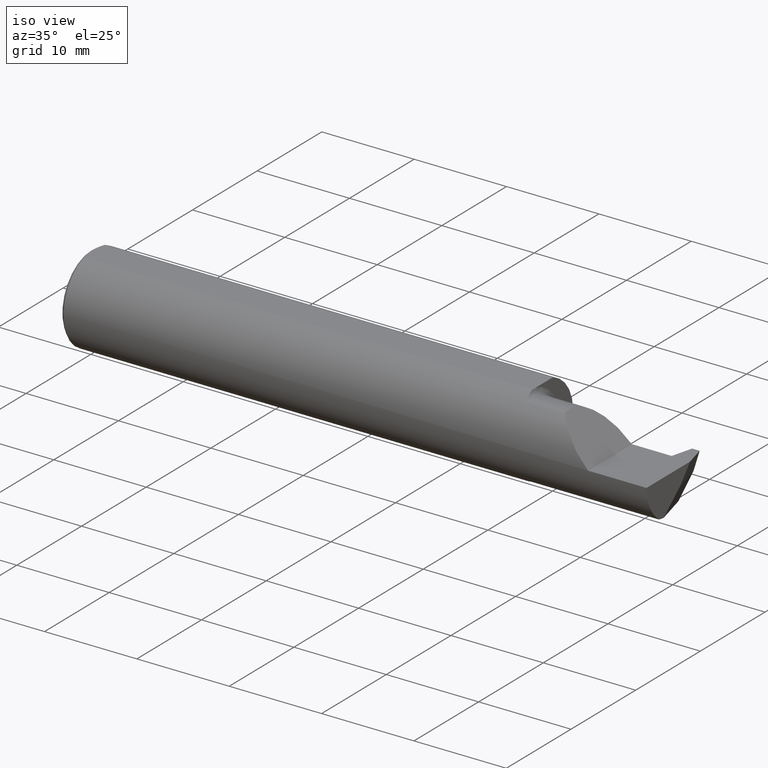
[diagram: clean part render]
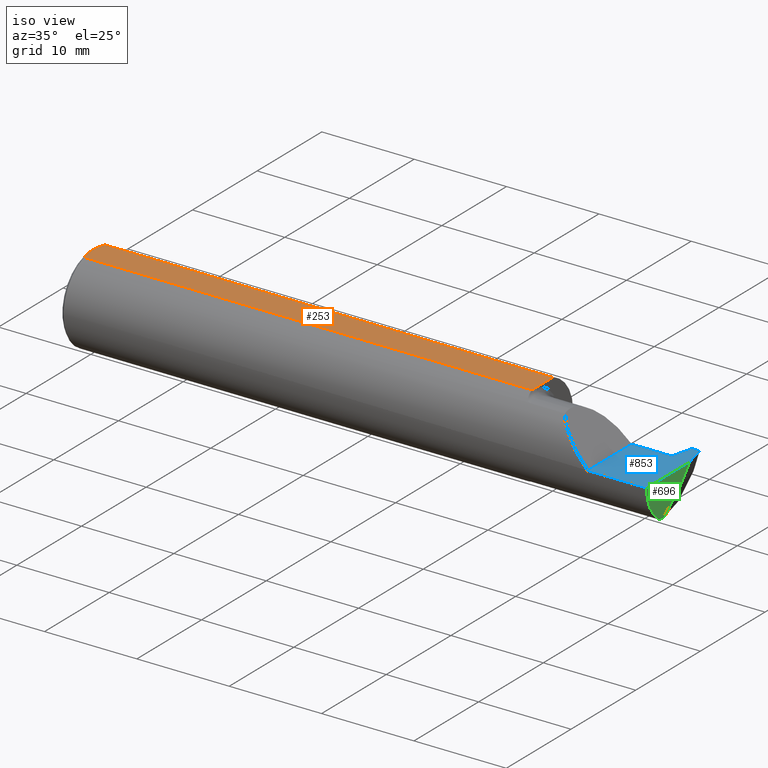
[diagram: same view with three faces highlighted in distinct colors, each labeled with its STEP entity id]
A machine part, iso view with three faces highlighted in distinct colors.
Their STEP definitions:

[orange] entity #253 — the highlighted planar face has unit normal (-0, 0, -1).
#16 = CARTESIAN_POINT ( 'NONE',  ( 0.01500000000000016251, -0.06325108694718359348, 0.1763499999999999790 ) ) ;
#33 = LINE ( 'NONE', #473, #823 ) ;
#48 = VECTOR ( 'NONE', #893, 39.37007874015748143 ) ;
#64 = VECTOR ( 'NONE', #815, 39.37007874015748143 ) ;
#87 = CARTESIAN_POINT ( 'NONE',  ( 0.01500000000000079568, 0.06325108694718213631, 0.1763499999999999790 ) ) ;
#88 = DIRECTION ( 'NONE',  ( 0.000000000000000000, -1.000000000000000000, 0.000000000000000000 ) ) ;
#129 = FACE_OUTER_BOUND ( 'NONE', #864, .T. ) ;
#134 = CARTESIAN_POINT ( 'NONE',  ( 1.925210246786177137, -0.06325108694718213631, 0.1763499999999999790 ) ) ;
#136 = B_SPLINE_CURVE_WITH_KNOTS ( 'NONE', 3,
 ( #331, #496, #580, #422 ),
 .UNSPECIFIED., .F., .F.,
 ( 4, 4 ),
 ( 1.084202172485504434E-18, 0.0006087596641710211901 ),
 .UNSPECIFIED. ) ;
#151 = CARTESIAN_POINT ( 'NONE',  ( 0.01500000000000016251, -0.06325108694718359348, 0.1763499999999999790 ) ) ;
#153 = CARTESIAN_POINT ( 'NONE',  ( 0.01500000000000079568, 0.06325108694718213631, 0.1763499999999999790 ) ) ;
#178 = EDGE_CURVE ( 'NONE', #228, #462, #136, .T. ) ;
#211 = CARTESIAN_POINT ( 'NONE',  ( 2.500000000000000000, -0.06325108694718213631, 0.1763499999999999790 ) ) ;
#221 = B_SPLINE_CURVE_WITH_KNOTS ( 'NONE', 3,
 ( #87, #604, #385, #688 ),
 .UNSPECIFIED., .F., .F.,
 ( 4, 4 ),
 ( 0.003872958501701110473, 0.005496776235116787243 ),
 .UNSPECIFIED. ) ;
#228 = VERTEX_POINT ( 'NONE', #134 ) ;
#253 = ADVANCED_FACE ( 'NONE', ( #129 ), #375, .F. ) ;
#255 = ORIENTED_EDGE ( 'NONE', *, *, #533, .F. ) ;
#312 = EDGE_CURVE ( 'NONE', #228, #421, #967, .T. ) ;
#321 = ORIENTED_EDGE ( 'NONE', *, *, #976, .T. ) ;
#331 = CARTESIAN_POINT ( 'NONE',  ( 1.925210246786177137, -0.06325108694718213631, 0.1763499999999999790 ) ) ;
#375 = PLANE ( 'NONE',  #968 ) ;
#385 = CARTESIAN_POINT ( 'NONE',  ( 0.004000000000000698309, 0.02174349820064850128, 0.1763499999999999790 ) ) ;
#391 = VERTEX_POINT ( 'NONE', #836 ) ;
#421 = VERTEX_POINT ( 'NONE', #151 ) ;
#422 = CARTESIAN_POINT ( 'NONE',  ( 1.925000000000000266, -0.03928509323455842139, 0.1763499999999999790 ) ) ;
#441 = EDGE_CURVE ( 'NONE', #817, #851, #676, .T. ) ;
#462 = VERTEX_POINT ( 'NONE', #756 ) ;
#473 = CARTESIAN_POINT ( 'NONE',  ( 1.925000000000000266, 0.1000000000000000056, 0.1763499999999999790 ) ) ;
#496 = CARTESIAN_POINT ( 'NONE',  ( 1.925138881465989771, -0.05526243373525235869, 0.1763499999999999790 ) ) ;
#533 = EDGE_CURVE ( 'NONE', #851, #462, #33, .T. ) ;
#568 = ORIENTED_EDGE ( 'NONE', *, *, #312, .F. ) ;
#580 = CARTESIAN_POINT ( 'NONE',  ( 1.925000000000000266, -0.04727406520530673395, 0.1763499999999999790 ) ) ;
#581 = EDGE_CURVE ( 'NONE', #391, #421, #722, .T. ) ;
#588 = DIRECTION ( 'NONE',  ( -0.000000000000000000, 0.000000000000000000, -1.000000000000000000 ) ) ;
#600 = CARTESIAN_POINT ( 'NONE',  ( 2.500000000000000000, 0.06325108694718213631, 0.1763499999999999790 ) ) ;
#604 = CARTESIAN_POINT ( 'NONE',  ( 0.008079618022130599653, 0.04275288484297749825, 0.1763499999999999790 ) ) ;
#676 = LINE ( 'NONE', #600, #48 ) ;
#688 = CARTESIAN_POINT ( 'NONE',  ( 0.004000000000000698309, 2.159664630174422375E-17, 0.1763499999999999790 ) ) ;
#694 = CARTESIAN_POINT ( 'NONE',  ( 0.004000000000000693105, -0.02175731046388915818, 0.1763499999999999790 ) ) ;
#697 = ORIENTED_EDGE ( 'NONE', *, *, #441, .F. ) ;
#706 = CARTESIAN_POINT ( 'NONE',  ( 0.008096539338608545536, -0.04280300585742017466, 0.1763499999999999790 ) ) ;
#722 = B_SPLINE_CURVE_WITH_KNOTS ( 'NONE', 3,
 ( #923, #694, #706, #16 ),
 .UNSPECIFIED., .F., .F.,
 ( 4, 4 ),
 ( 0.005496776235116787243, 0.007121625476792169465 ),
 .UNSPECIFIED. ) ;
#733 = ORIENTED_EDGE ( 'NONE', *, *, #581, .T. ) ;
#739 = DIRECTION ( 'NONE',  ( -1.000000000000000000, 0.000000000000000000, 0.000000000000000000 ) ) ;
#756 = CARTESIAN_POINT ( 'NONE',  ( 1.925000000000000266, -0.03928509323455842139, 0.1763499999999999790 ) ) ;
#815 = DIRECTION ( 'NONE',  ( -1.000000000000000000, -0.000000000000000000, -0.000000000000000000 ) ) ;
#817 = VERTEX_POINT ( 'NONE', #153 ) ;
#823 = VECTOR ( 'NONE', #88, 39.37007874015748143 ) ;
#836 = CARTESIAN_POINT ( 'NONE',  ( 0.004000000000000698309, 2.159664630174422375E-17, 0.1763499999999999790 ) ) ;
#851 = VERTEX_POINT ( 'NONE', #916 ) ;
#864 = EDGE_LOOP ( 'NONE', ( #255, #697, #321, #733, #568, #878 ) ) ;
#878 = ORIENTED_EDGE ( 'NONE', *, *, #178, .T. ) ;
#893 = DIRECTION ( 'NONE',  ( 1.000000000000000000, 0.000000000000000000, 0.000000000000000000 ) ) ;
#916 = CARTESIAN_POINT ( 'NONE',  ( 1.925000000000000266, 0.06325108694718213631, 0.1763499999999999790 ) ) ;
#923 = CARTESIAN_POINT ( 'NONE',  ( 0.004000000000000698309, 2.159664630174422375E-17, 0.1763499999999999790 ) ) ;
#959 = CARTESIAN_POINT ( 'NONE',  ( 0.000000000000000000, 0.1000000000000000056, 0.1763499999999999790 ) ) ;
#967 = LINE ( 'NONE', #211, #64 ) ;
#968 = AXIS2_PLACEMENT_3D ( 'NONE', #959, #588, #739 ) ;
#976 = EDGE_CURVE ( 'NONE', #817, #391, #221, .T. ) ;

[blue] entity #853 — the highlighted planar face has unit normal (-0, 0, -1).
#17 = DIRECTION ( 'NONE',  ( -0.000000000000000000, 0.000000000000000000, -1.000000000000000000 ) ) ;
#40 = DIRECTION ( 'NONE',  ( -0.000000000000000000, 1.000000000000000000, -0.000000000000000000 ) ) ;
#57 = ORIENTED_EDGE ( 'NONE', *, *, #654, .F. ) ;
#71 = DIRECTION ( 'NONE',  ( -1.000000000000000000, -0.000000000000000000, -0.000000000000000000 ) ) ;
#79 = VECTOR ( 'NONE', #40, 39.37007874015748143 ) ;
#111 = CARTESIAN_POINT ( 'NONE',  ( 2.250000000000000000, 0.2000000000000000111, -4.469813191451678053E-17 ) ) ;
#138 = VECTOR ( 'NONE', #973, 39.37007874015748143 ) ;
#158 = PLANE ( 'NONE',  #394 ) ;
#199 = CARTESIAN_POINT ( 'NONE',  ( 2.500000000000000000, -0.1873500000000000165, -4.469813191451678053E-17 ) ) ;
#217 = LINE ( 'NONE', #227, #843 ) ;
#224 = CARTESIAN_POINT ( 'NONE',  ( 2.500000000000000000, 0.07784888572242860960, 0.000000000000000000 ) ) ;
#226 = VERTEX_POINT ( 'NONE', #734 ) ;
#227 = CARTESIAN_POINT ( 'NONE',  ( 1.925000000000000266, 0.07964999999999992919, -4.469813191451678053E-17 ) ) ;
#244 = VERTEX_POINT ( 'NONE', #199 ) ;
#248 = VERTEX_POINT ( 'NONE', #518 ) ;
#260 = LINE ( 'NONE', #111, #79 ) ;
#267 = DIRECTION ( 'NONE',  ( 0.2503800040544337246, -0.9681476403781097417, 0.000000000000000000 ) ) ;
#284 = LINE ( 'NONE', #750, #855 ) ;
#289 = CARTESIAN_POINT ( 'NONE',  ( 2.420465799823614539, 0.07964999999999992919, 0.000000000000000000 ) ) ;
#296 = EDGE_CURVE ( 'NONE', #924, #650, #601, .T. ) ;
#306 = LINE ( 'NONE', #909, #576 ) ;
#338 = CARTESIAN_POINT ( 'NONE',  ( 2.250000000000000000, -0.1873499999999999888, -4.469813191451678053E-17 ) ) ;
#367 = LINE ( 'NONE', #289, #969 ) ;
#382 = DIRECTION ( 'NONE',  ( 1.000000000000000000, 0.000000000000000000, 0.000000000000000000 ) ) ;
#384 = ORIENTED_EDGE ( 'NONE', *, *, #668, .F. ) ;
#387 = CARTESIAN_POINT ( 'NONE',  ( 2.250000000000000000, 0.2000000000000000111, -4.469813191451678053E-17 ) ) ;
#394 = AXIS2_PLACEMENT_3D ( 'NONE', #387, #17, #913 ) ;
#399 = EDGE_CURVE ( 'NONE', #226, #650, #306, .T. ) ;
#417 = CARTESIAN_POINT ( 'NONE',  ( 2.475314547023544254, 0.1733004499999999115, 0.000000000000000000 ) ) ;
#429 = VERTEX_POINT ( 'NONE', #224 ) ;
#435 = CARTESIAN_POINT ( 'NONE',  ( 2.476000000000000423, 0.1706499999999999406, 0.000000000000000000 ) ) ;
#437 = VECTOR ( 'NONE', #267, 39.37007874015748143 ) ;
#472 = ORIENTED_EDGE ( 'NONE', *, *, #740, .F. ) ;
#487 = CARTESIAN_POINT ( 'NONE',  ( 2.500000000000000000, 0.2000000000000000111, -4.469813191451678053E-17 ) ) ;
#500 = DIRECTION ( 'NONE',  ( -0.000000000000000000, 1.000000000000000000, -0.000000000000000000 ) ) ;
#518 = CARTESIAN_POINT ( 'NONE',  ( 2.250000000000000000, 0.07964999999999992919, -4.469813191451678053E-17 ) ) ;
#522 = VECTOR ( 'NONE', #500, 39.37007874015748143 ) ;
#544 = FACE_OUTER_BOUND ( 'NONE', #972, .T. ) ;
#576 = VECTOR ( 'NONE', #616, 39.37007874015748854 ) ;
#579 = ORIENTED_EDGE ( 'NONE', *, *, #399, .F. ) ;
#584 = CARTESIAN_POINT ( 'NONE',  ( 2.249999999999999556, 0.1706500000000036599, -4.469813191451678053E-17 ) ) ;
#601 = LINE ( 'NONE', #584, #138 ) ;
#607 = EDGE_CURVE ( 'NONE', #653, #248, #260, .T. ) ;
#616 = DIRECTION ( 'NONE',  ( 0.2503800040544299499, 0.9681476403781106299, -0.000000000000000000 ) ) ;
#627 = EDGE_CURVE ( 'NONE', #244, #429, #865, .T. ) ;
#648 = LINE ( 'NONE', #417, #437 ) ;
#650 = VERTEX_POINT ( 'NONE', #950 ) ;
#653 = VERTEX_POINT ( 'NONE', #338 ) ;
#654 = EDGE_CURVE ( 'NONE', #924, #429, #648, .T. ) ;
#657 = ORIENTED_EDGE ( 'NONE', *, *, #296, .T. ) ;
#668 = EDGE_CURVE ( 'NONE', #244, #653, #284, .T. ) ;
#734 = CARTESIAN_POINT ( 'NONE',  ( 2.420465799823614539, 0.07964999999999992919, 0.000000000000000000 ) ) ;
#740 = EDGE_CURVE ( 'NONE', #870, #226, #367, .T. ) ;
#750 = CARTESIAN_POINT ( 'NONE',  ( 2.500000000000000000, -0.1873499999999999888, -4.469813191451678053E-17 ) ) ;
#820 = DIRECTION ( 'NONE',  ( 1.000000000000000000, 1.707404996040182705E-15, -0.000000000000000000 ) ) ;
#841 = ORIENTED_EDGE ( 'NONE', *, *, #607, .F. ) ;
#843 = VECTOR ( 'NONE', #382, 39.37007874015748143 ) ;
#853 = ADVANCED_FACE ( 'NONE', ( #544 ), #158, .F. ) ;
#855 = VECTOR ( 'NONE', #71, 39.37007874015748143 ) ;
#865 = LINE ( 'NONE', #487, #522 ) ;
#870 = VERTEX_POINT ( 'NONE', #919 ) ;
#902 = ORIENTED_EDGE ( 'NONE', *, *, #627, .T. ) ;
#909 = CARTESIAN_POINT ( 'NONE',  ( 2.444685452976455675, 0.1733004499999999115, 0.000000000000000000 ) ) ;
#913 = DIRECTION ( 'NONE',  ( -1.000000000000000000, 0.000000000000000000, 0.000000000000000000 ) ) ;
#914 = EDGE_CURVE ( 'NONE', #248, #870, #217, .T. ) ;
#919 = CARTESIAN_POINT ( 'NONE',  ( 2.410465799823614752, 0.07964999999999991531, 0.000000000000000000 ) ) ;
#924 = VERTEX_POINT ( 'NONE', #435 ) ;
#950 = CARTESIAN_POINT ( 'NONE',  ( 2.443999999999999506, 0.1706500000000004680, 0.000000000000000000 ) ) ;
#961 = ORIENTED_EDGE ( 'NONE', *, *, #914, .F. ) ;
#969 = VECTOR ( 'NONE', #820, 39.37007874015748143 ) ;
#972 = EDGE_LOOP ( 'NONE', ( #657, #579, #472, #961, #841, #384, #902, #57 ) ) ;
#973 = DIRECTION ( 'NONE',  ( -1.000000000000000000, 1.641749719446381554E-14, 0.000000000000000000 ) ) ;

[green] entity #696 — the highlighted planar face has unit normal (1, 0, 0).
#18 = ORIENTED_EDGE ( 'NONE', *, *, #519, .F. ) ;
#19 = CIRCLE ( 'NONE', #507, 0.1873499999999999888 ) ;
#47 = CIRCLE ( 'NONE', #792, 0.1549999999999999434 ) ;
#104 = DIRECTION ( 'NONE',  ( 1.000000000000000000, -0.000000000000000000, -0.000000000000000000 ) ) ;
#109 = CARTESIAN_POINT ( 'NONE',  ( 2.500000000000000000, -0.07535000000000005582, 0.000000000000000000 ) ) ;
#130 = PLANE ( 'NONE',  #203 ) ;
#172 = EDGE_CURVE ( 'NONE', #202, #326, #47, .T. ) ;
#174 = EDGE_LOOP ( 'NONE', ( #281, #908, #18, #538, #689 ) ) ;
#199 = CARTESIAN_POINT ( 'NONE',  ( 2.500000000000000000, -0.1873500000000000165, -4.469813191451678053E-17 ) ) ;
#202 = VERTEX_POINT ( 'NONE', #420 ) ;
#203 = AXIS2_PLACEMENT_3D ( 'NONE', #663, #678, #741 ) ;
#224 = CARTESIAN_POINT ( 'NONE',  ( 2.500000000000000000, 0.07784888572242860960, 0.000000000000000000 ) ) ;
#236 = DIRECTION ( 'NONE',  ( 0.000000000000000000, -0.7660444431189792347, -0.6427876096865379196 ) ) ;
#244 = VERTEX_POINT ( 'NONE', #199 ) ;
#281 = ORIENTED_EDGE ( 'NONE', *, *, #172, .T. ) ;
#326 = VERTEX_POINT ( 'NONE', #895 ) ;
#353 = DIRECTION ( 'NONE',  ( 0.000000000000000000, 0.000000000000000000, 1.000000000000000000 ) ) ;
#406 = CARTESIAN_POINT ( 'NONE',  ( 2.500000000000000000, 0.04569972933712732749, -0.03833024582787391416 ) ) ;
#420 = CARTESIAN_POINT ( 'NONE',  ( 2.500000000000000000, -0.1111655275381552010, -0.1508053314281814494 ) ) ;
#429 = VERTEX_POINT ( 'NONE', #224 ) ;
#440 = CARTESIAN_POINT ( 'NONE',  ( 2.500000000000000000, 0.000000000000000000, 0.000000000000000000 ) ) ;
#445 = DIRECTION ( 'NONE',  ( 1.000000000000000000, 0.000000000000000000, 0.000000000000000000 ) ) ;
#487 = CARTESIAN_POINT ( 'NONE',  ( 2.500000000000000000, 0.2000000000000000111, -4.469813191451678053E-17 ) ) ;
#500 = DIRECTION ( 'NONE',  ( -0.000000000000000000, 1.000000000000000000, -0.000000000000000000 ) ) ;
#507 = AXIS2_PLACEMENT_3D ( 'NONE', #440, #445, #527 ) ;
#519 = EDGE_CURVE ( 'NONE', #429, #965, #628, .T. ) ;
#522 = VECTOR ( 'NONE', #500, 39.37007874015748143 ) ;
#527 = DIRECTION ( 'NONE',  ( 0.000000000000000000, 0.000000000000000000, -1.000000000000000000 ) ) ;
#538 = ORIENTED_EDGE ( 'NONE', *, *, #627, .F. ) ;
#614 = CARTESIAN_POINT ( 'NONE',  ( 2.500000000000000000, 0.01913700171634113642, -0.06999999999999574618 ) ) ;
#627 = EDGE_CURVE ( 'NONE', #244, #429, #865, .T. ) ;
#628 = LINE ( 'NONE', #406, #898 ) ;
#656 = EDGE_CURVE ( 'NONE', #244, #202, #19, .T. ) ;
#663 = CARTESIAN_POINT ( 'NONE',  ( 2.500000000000000000, 0.000000000000000000, 0.000000000000000000 ) ) ;
#678 = DIRECTION ( 'NONE',  ( 1.000000000000000000, 0.000000000000000000, 0.000000000000000000 ) ) ;
#689 = ORIENTED_EDGE ( 'NONE', *, *, #656, .T. ) ;
#696 = ADVANCED_FACE ( 'NONE', ( #735 ), #130, .T. ) ;
#713 = DIRECTION ( 'NONE',  ( 0.000000000000000000, -0.6426264403010707449, -0.7661796514042735762 ) ) ;
#735 = FACE_OUTER_BOUND ( 'NONE', #174, .T. ) ;
#741 = DIRECTION ( 'NONE',  ( 0.000000000000000000, 0.000000000000000000, -1.000000000000000000 ) ) ;
#792 = AXIS2_PLACEMENT_3D ( 'NONE', #109, #104, #353 ) ;
#810 = VECTOR ( 'NONE', #236, 39.37007874015748143 ) ;
#865 = LINE ( 'NONE', #487, #522 ) ;
#895 = CARTESIAN_POINT ( 'NONE',  ( 2.500000000000000000, -0.08199235869078709549, -0.1548576090188109600 ) ) ;
#898 = VECTOR ( 'NONE', #713, 39.37007874015748854 ) ;
#899 = LINE ( 'NONE', #907, #810 ) ;
#907 = CARTESIAN_POINT ( 'NONE',  ( 2.500000000000000000, 0.01913700171634113642, -0.06999999999999574618 ) ) ;
#908 = ORIENTED_EDGE ( 'NONE', *, *, #977, .F. ) ;
#965 = VERTEX_POINT ( 'NONE', #614 ) ;
#977 = EDGE_CURVE ( 'NONE', #965, #326, #899, .T. ) ;